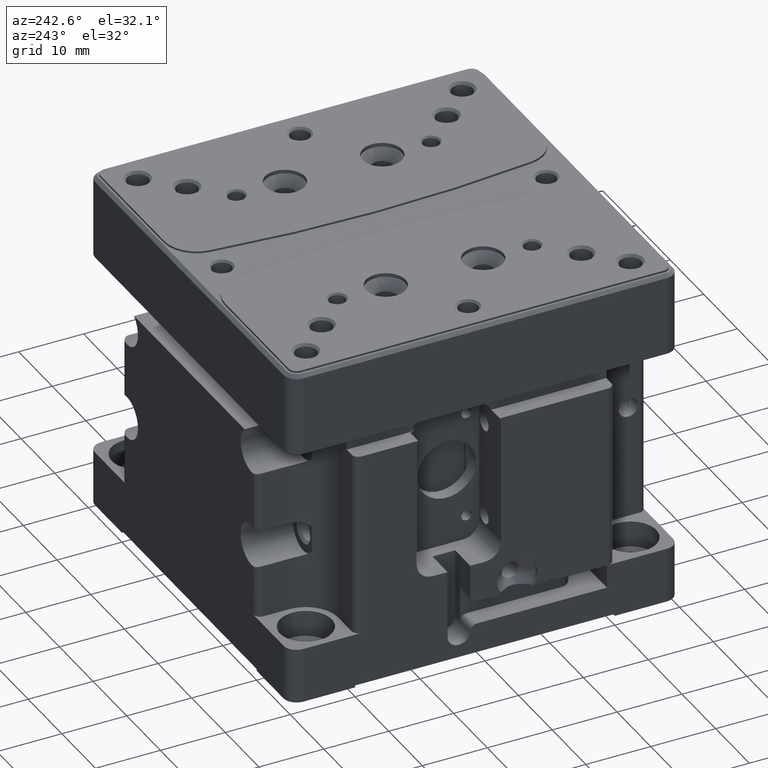
[diagram: clean part render]
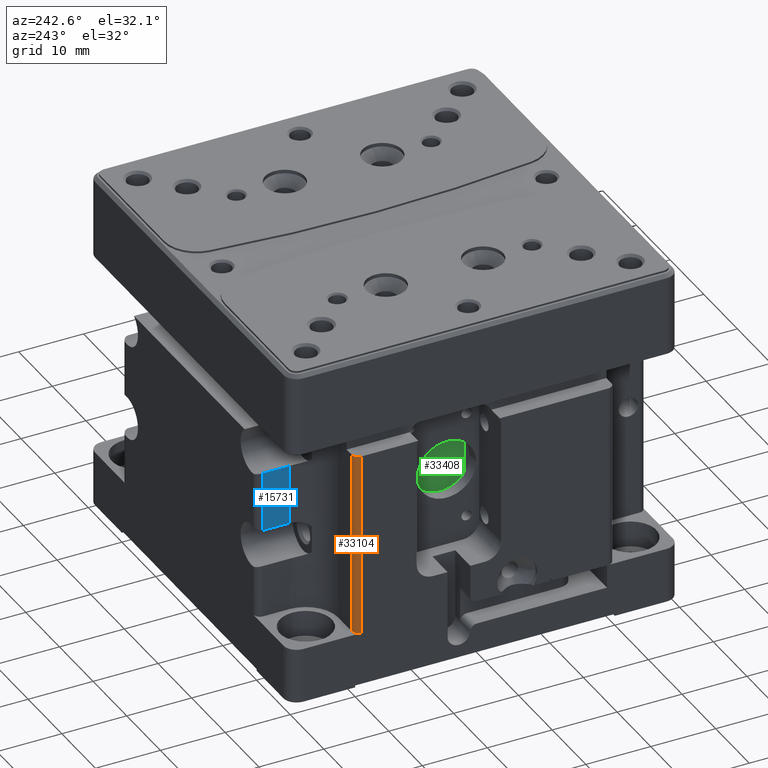
[diagram: same view with three faces highlighted in distinct colors, each labeled with its STEP entity id]
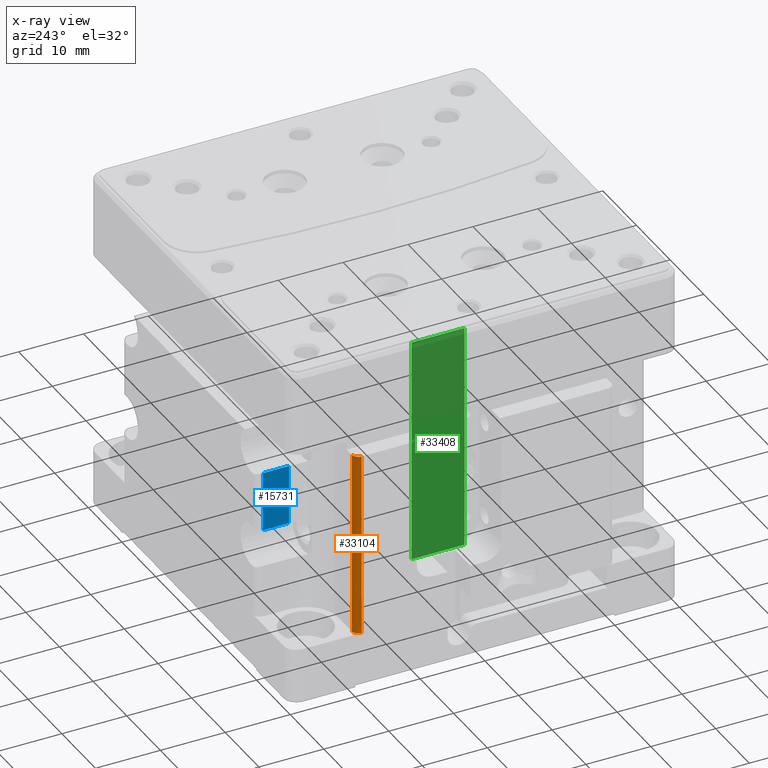
[diagram: x-ray of the same camera — body ghosted, the three highlighted faces saturated]
A machine part, auxiliary view with three faces highlighted in distinct colors.
The next image is the same camera in x-ray (body ghosted, the three faces saturated) — at least one of them is partly hidden behind the body in this view.
Their STEP definitions:

[orange] entity #33104 — the highlighted cylindrical surface (edge-blend (fillet) strip) has radius 1 mm, axis along (0, 0, -1).
#1477 = CIRCLE ( 'NONE', #30194, 1.000000000000000888 ) ;
#2572 = ORIENTED_EDGE ( 'NONE', *, *, #10732, .T. ) ;
#3307 = VERTEX_POINT ( 'NONE', #27751 ) ;
#3739 = CARTESIAN_POINT ( 'NONE',  ( -29.00000000000000000, 19.00000000000000000, 28.50000000000000000 ) ) ;
#4186 = CARTESIAN_POINT ( 'NONE',  ( -30.00000000000000000, 19.00000000000000000, 28.50000000000000000 ) ) ;
#8285 = CARTESIAN_POINT ( 'NONE',  ( -29.00000000000000000, 19.00000000000000000, 91.70659999999999457 ) ) ;
#10586 = DIRECTION ( 'NONE',  ( 0.000000000000000000, 0.000000000000000000, -1.000000000000000000 ) ) ;
#10732 = EDGE_CURVE ( 'NONE', #21890, #22979, #19291, .T. ) ;
#11988 = DIRECTION ( 'NONE',  ( 0.000000000000000000, 0.000000000000000000, -1.000000000000000000 ) ) ;
#13307 = VECTOR ( 'NONE', #11988, 1000.000000000000000 ) ;
#14724 = ORIENTED_EDGE ( 'NONE', *, *, #28291, .F. ) ;
#16307 = CARTESIAN_POINT ( 'NONE',  ( -29.00000000000000000, 19.00000000000000000, 0.000000000000000000 ) ) ;
#18129 = CARTESIAN_POINT ( 'NONE',  ( -29.00000000000000000, 20.00000000000000000, 0.000000000000000000 ) ) ;
#18385 = CARTESIAN_POINT ( 'NONE',  ( -29.00000000000000000, 20.00000000000000000, 28.50000000000000000 ) ) ;
#18433 = DIRECTION ( 'NONE',  ( -1.000000000000000000, 0.000000000000000000, 0.000000000000000000 ) ) ;
#18519 = CARTESIAN_POINT ( 'NONE',  ( -30.00000000000000000, 19.00000000000000000, 28.50000000000000000 ) ) ;
#19291 = CIRCLE ( 'NONE', #24922, 1.000000000000000888 ) ;
#19379 = VERTEX_POINT ( 'NONE', #18129 ) ;
#21083 = DIRECTION ( 'NONE',  ( 0.000000000000000000, 0.000000000000000000, -1.000000000000000000 ) ) ;
#21333 = DIRECTION ( 'NONE',  ( 0.000000000000000000, 0.000000000000000000, -1.000000000000000000 ) ) ;
#21529 = DIRECTION ( 'NONE',  ( -1.000000000000000000, 0.000000000000000000, 0.000000000000000000 ) ) ;
#21690 = FACE_OUTER_BOUND ( 'NONE', #25424, .T. ) ;
#21890 = VERTEX_POINT ( 'NONE', #4186 ) ;
#22918 = AXIS2_PLACEMENT_3D ( 'NONE', #8285, #10586, #21529 ) ;
#22979 = VERTEX_POINT ( 'NONE', #18385 ) ;
#24922 = AXIS2_PLACEMENT_3D ( 'NONE', #3739, #25419, #28076 ) ;
#25419 = DIRECTION ( 'NONE',  ( 0.000000000000000000, 0.000000000000000000, -1.000000000000000000 ) ) ;
#25424 = EDGE_LOOP ( 'NONE', ( #33859, #34677, #14724, #2572 ) ) ;
#25744 = CARTESIAN_POINT ( 'NONE',  ( -29.00000000000000000, 20.00000000000000000, 28.50000000000000000 ) ) ;
#26273 = LINE ( 'NONE', #25744, #13307 ) ;
#26286 = LINE ( 'NONE', #18519, #31969 ) ;
#27355 = EDGE_CURVE ( 'NONE', #3307, #19379, #1477, .T. ) ;
#27751 = CARTESIAN_POINT ( 'NONE',  ( -30.00000000000000000, 19.00000000000000000, 0.000000000000000000 ) ) ;
#27843 = EDGE_CURVE ( 'NONE', #22979, #19379, #26273, .T. ) ;
#28076 = DIRECTION ( 'NONE',  ( -1.000000000000000000, 0.000000000000000000, 0.000000000000000000 ) ) ;
#28291 = EDGE_CURVE ( 'NONE', #21890, #3307, #26286, .T. ) ;
#30194 = AXIS2_PLACEMENT_3D ( 'NONE', #16307, #21083, #18433 ) ;
#31969 = VECTOR ( 'NONE', #21333, 1000.000000000000000 ) ;
#33104 = ADVANCED_FACE ( 'NONE', ( #21690 ), #34773, .T. ) ;
#33859 = ORIENTED_EDGE ( 'NONE', *, *, #27843, .T. ) ;
#34677 = ORIENTED_EDGE ( 'NONE', *, *, #27355, .F. ) ;
#34773 = CYLINDRICAL_SURFACE ( 'NONE', #22918, 1.000000000000000888 ) ;

[blue] entity #15731 — the highlighted planar face has unit normal (1, 0, 0).
#2767 = DIRECTION ( 'NONE',  ( 0.000000000000000000, 1.000000000000000000, 0.000000000000000000 ) ) ;
#3641 = VECTOR ( 'NONE', #34236, 1000.000000000000000 ) ;
#7229 = LINE ( 'NONE', #12535, #3641 ) ;
#8576 = PLANE ( 'NONE',  #28477 ) ;
#9586 = EDGE_CURVE ( 'NONE', #13535, #13684, #7229, .T. ) ;
#10167 = DIRECTION ( 'NONE',  ( 0.000000000000000000, 0.000000000000000000, 1.000000000000000000 ) ) ;
#10347 = LINE ( 'NONE', #10515, #28173 ) ;
#10515 = CARTESIAN_POINT ( 'NONE',  ( -20.00000000000000000, 29.00000000000000000, 13.88314064867000042 ) ) ;
#12182 = EDGE_CURVE ( 'NONE', #27904, #26066, #20360, .T. ) ;
#12535 = CARTESIAN_POINT ( 'NONE',  ( -20.00000000000000000, 25.00000000000000000, 23.11685935132999958 ) ) ;
#13535 = VERTEX_POINT ( 'NONE', #16329 ) ;
#13684 = VERTEX_POINT ( 'NONE', #31471 ) ;
#14249 = VECTOR ( 'NONE', #15399, 1000.000000000000000 ) ;
#14600 = EDGE_CURVE ( 'NONE', #26066, #13684, #10347, .T. ) ;
#15399 = DIRECTION ( 'NONE',  ( 0.000000000000000000, 0.000000000000000000, -1.000000000000000000 ) ) ;
#15731 = ADVANCED_FACE ( 'NONE', ( #27270 ), #8576, .F. ) ;
#15967 = ORIENTED_EDGE ( 'NONE', *, *, #9586, .T. ) ;
#16329 = CARTESIAN_POINT ( 'NONE',  ( -20.00000000000000000, 25.00000000000000000, 23.11685935132999958 ) ) ;
#16346 = CARTESIAN_POINT ( 'NONE',  ( -20.00000000000000000, 25.00000000000000000, 35.00000000000000000 ) ) ;
#17650 = CARTESIAN_POINT ( 'NONE',  ( -20.00000000000000000, 25.00000000000000000, 13.88314064867000042 ) ) ;
#18165 = ORIENTED_EDGE ( 'NONE', *, *, #20075, .F. ) ;
#20075 = EDGE_CURVE ( 'NONE', #13535, #27904, #34459, .T. ) ;
#20181 = DIRECTION ( 'NONE',  ( 0.000000000000000000, 1.000000000000000000, 0.000000000000000000 ) ) ;
#20360 = LINE ( 'NONE', #29460, #27822 ) ;
#23297 = EDGE_LOOP ( 'NONE', ( #34672, #25891, #18165, #15967 ) ) ;
#23675 = CARTESIAN_POINT ( 'NONE',  ( -20.00000000000000000, 25.00000000000000000, 23.11685935132999958 ) ) ;
#25891 = ORIENTED_EDGE ( 'NONE', *, *, #12182, .F. ) ;
#26066 = VERTEX_POINT ( 'NONE', #31666 ) ;
#26924 = DIRECTION ( 'NONE',  ( 1.000000000000000000, 0.000000000000000000, 0.000000000000000000 ) ) ;
#27270 = FACE_OUTER_BOUND ( 'NONE', #23297, .T. ) ;
#27822 = VECTOR ( 'NONE', #20181, 1000.000000000000000 ) ;
#27904 = VERTEX_POINT ( 'NONE', #17650 ) ;
#28173 = VECTOR ( 'NONE', #10167, 1000.000000000000000 ) ;
#28477 = AXIS2_PLACEMENT_3D ( 'NONE', #16346, #26924, #2767 ) ;
#29460 = CARTESIAN_POINT ( 'NONE',  ( -20.00000000000000000, 25.00000000000000000, 13.88314064867000042 ) ) ;
#31471 = CARTESIAN_POINT ( 'NONE',  ( -20.00000000000000000, 29.00000000000000000, 23.11685935132999958 ) ) ;
#31666 = CARTESIAN_POINT ( 'NONE',  ( -20.00000000000000000, 29.00000000000000000, 13.88314064867000042 ) ) ;
#34236 = DIRECTION ( 'NONE',  ( 0.000000000000000000, 1.000000000000000000, 0.000000000000000000 ) ) ;
#34459 = LINE ( 'NONE', #23675, #14249 ) ;
#34672 = ORIENTED_EDGE ( 'NONE', *, *, #14600, .F. ) ;

[green] entity #33408 — the highlighted planar face has unit normal (-1, 0, 0).
#926 = VECTOR ( 'NONE', #9228, 1000.000000000000000 ) ;
#1329 = LINE ( 'NONE', #31454, #926 ) ;
#2967 = FACE_OUTER_BOUND ( 'NONE', #6037, .T. ) ;
#3895 = CARTESIAN_POINT ( 'NONE',  ( -20.58999999999999986, 6.424999999999999822, 3.000000000000000000 ) ) ;
#4177 = ORIENTED_EDGE ( 'NONE', *, *, #27570, .T. ) ;
#4906 = VERTEX_POINT ( 'NONE', #3895 ) ;
#4982 = EDGE_CURVE ( 'NONE', #16377, #14420, #28944, .T. ) ;
#6037 = EDGE_LOOP ( 'NONE', ( #27429, #31402, #7202, #4177 ) ) ;
#6400 = DIRECTION ( 'NONE',  ( 0.000000000000000000, 0.000000000000000000, -1.000000000000000000 ) ) ;
#7087 = EDGE_CURVE ( 'NONE', #16377, #4906, #24282, .T. ) ;
#7202 = ORIENTED_EDGE ( 'NONE', *, *, #7087, .T. ) ;
#7552 = CARTESIAN_POINT ( 'NONE',  ( -20.58999999999999986, 0.000000000000000000, 3.000000000000000000 ) ) ;
#7667 = VECTOR ( 'NONE', #7809, 1000.000000000000000 ) ;
#7809 = DIRECTION ( 'NONE',  ( 0.000000000000000000, 0.000000000000000000, 1.000000000000000000 ) ) ;
#8219 = CARTESIAN_POINT ( 'NONE',  ( -20.58999999999999986, 6.424999999999999822, 38.00000000000000000 ) ) ;
#9228 = DIRECTION ( 'NONE',  ( 0.000000000000000000, -1.000000000000000000, 0.000000000000000000 ) ) ;
#9575 = LINE ( 'NONE', #17707, #7667 ) ;
#10226 = CARTESIAN_POINT ( 'NONE',  ( -20.58999999999999986, 6.424999999999999822, 38.00000000000000000 ) ) ;
#10372 = PLANE ( 'NONE',  #27887 ) ;
#14420 = VERTEX_POINT ( 'NONE', #33137 ) ;
#16377 = VERTEX_POINT ( 'NONE', #27344 ) ;
#17707 = CARTESIAN_POINT ( 'NONE',  ( -20.58999999999999986, -1.724999999999999867, 3.000000000000000000 ) ) ;
#18321 = DIRECTION ( 'NONE',  ( 0.000000000000000000, 0.000000000000000000, 1.000000000000000000 ) ) ;
#20992 = DIRECTION ( 'NONE',  ( 0.000000000000000000, -1.000000000000000000, 0.000000000000000000 ) ) ;
#23201 = VECTOR ( 'NONE', #20992, 1000.000000000000000 ) ;
#24282 = LINE ( 'NONE', #8219, #29356 ) ;
#24681 = VERTEX_POINT ( 'NONE', #32401 ) ;
#27344 = CARTESIAN_POINT ( 'NONE',  ( -20.58999999999999986, 6.424999999999999822, 38.00000000000000000 ) ) ;
#27429 = ORIENTED_EDGE ( 'NONE', *, *, #27648, .T. ) ;
#27570 = EDGE_CURVE ( 'NONE', #4906, #24681, #1329, .T. ) ;
#27648 = EDGE_CURVE ( 'NONE', #24681, #14420, #9575, .T. ) ;
#27887 = AXIS2_PLACEMENT_3D ( 'NONE', #7552, #29595, #18321 ) ;
#28944 = LINE ( 'NONE', #10226, #23201 ) ;
#29356 = VECTOR ( 'NONE', #6400, 1000.000000000000000 ) ;
#29595 = DIRECTION ( 'NONE',  ( -1.000000000000000000, 0.000000000000000000, 0.000000000000000000 ) ) ;
#31402 = ORIENTED_EDGE ( 'NONE', *, *, #4982, .F. ) ;
#31454 = CARTESIAN_POINT ( 'NONE',  ( -20.58999999999999986, 6.424999999999999822, 3.000000000000000000 ) ) ;
#32401 = CARTESIAN_POINT ( 'NONE',  ( -20.58999999999999986, -1.724999999999999867, 3.000000000000000000 ) ) ;
#33137 = CARTESIAN_POINT ( 'NONE',  ( -20.58999999999999986, -1.724999999999999867, 38.00000000000000000 ) ) ;
#33408 = ADVANCED_FACE ( 'NONE', ( #2967 ), #10372, .T. ) ;